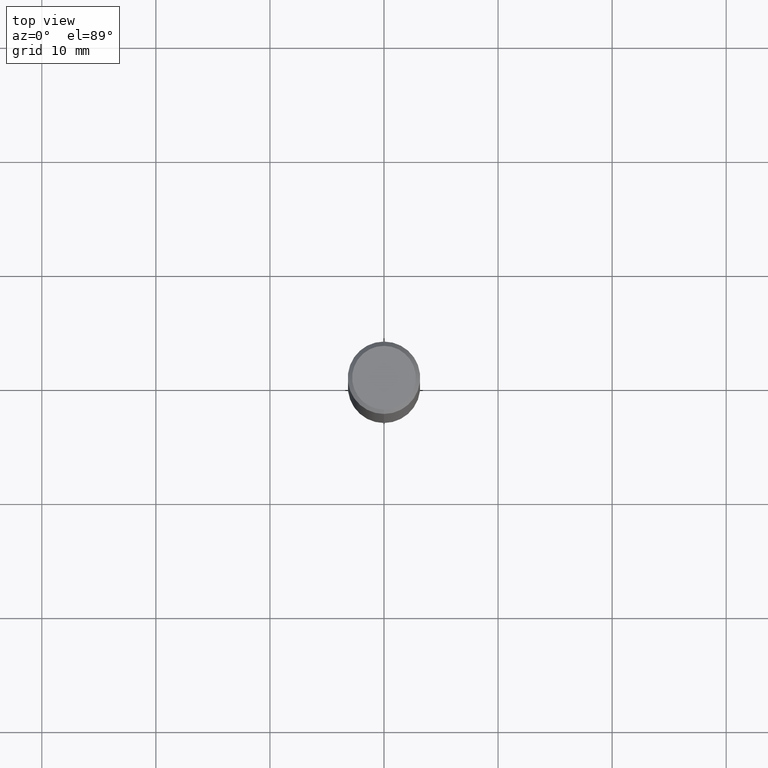
[diagram: clean part render]
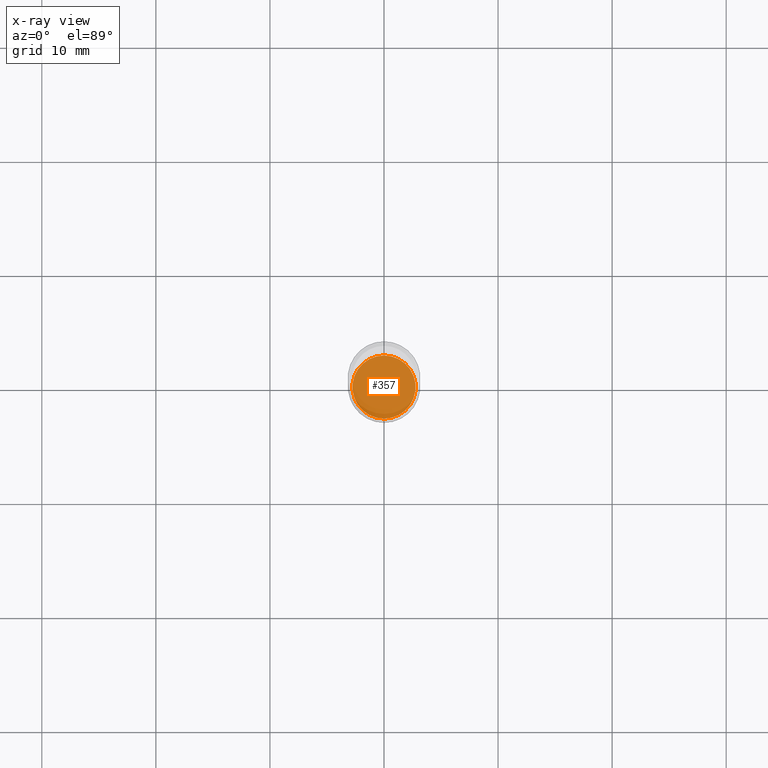
[diagram: x-ray — body ghosted, one internal face saturated and labeled with its STEP entity id]
A machine part, top view, then the same camera in x-ray: the body is ghosted and one INTERNAL B-rep face — a face not visible from any outside direction — is saturated and labeled: STEP entity #357.
In plain terms, the highlighted planar face has unit normal (-0, 0, 1).
Its self-contained STEP definition (entity closure, byte-faithful):
#8 = DIRECTION ( 'NONE',  ( -6.982962677686265133E-15, -1.000000000000000000, 2.508584016220627649E-15 ) ) ;
#15 = DIRECTION ( 'NONE',  ( -6.982962677686265133E-15, -1.000000000000000000, 2.508584016220627649E-15 ) ) ;
#68 = DIRECTION ( 'NONE',  ( -6.982962677686265922E-15, -1.000000000000000000, 3.491749109436874554E-15 ) ) ;
#78 = EDGE_LOOP ( 'NONE', ( #305, #135 ) ) ;
#81 = EDGE_CURVE ( 'NONE', #446, #328, #320, .T. ) ;
#135 = ORIENTED_EDGE ( 'NONE', *, *, #81, .F. ) ;
#148 = CARTESIAN_POINT ( 'NONE',  ( 7.755573960821947898E-16, 0.1088999999999934604, -1.875000000000000444 ) ) ;
#153 = CIRCLE ( 'NONE', #168, 0.1088999999999999968 ) ;
#163 = CARTESIAN_POINT ( 'NONE',  ( 4.584903418085470008E-29, -6.547029580194142106E-15, -1.875000000000000000 ) ) ;
#168 = AXIS2_PLACEMENT_3D ( 'NONE', #362, #492, #15 ) ;
#192 = FACE_OUTER_BOUND ( 'NONE', #78, .T. ) ;
#220 = PLANE ( 'NONE',  #322 ) ;
#247 = EDGE_CURVE ( 'NONE', #328, #446, #153, .T. ) ;
#305 = ORIENTED_EDGE ( 'NONE', *, *, #247, .F. ) ;
#320 = CIRCLE ( 'NONE', #439, 0.1088999999999999968 ) ;
#322 = AXIS2_PLACEMENT_3D ( 'NONE', #343, #377, #68 ) ;
#328 = VERTEX_POINT ( 'NONE', #440 ) ;
#343 = CARTESIAN_POINT ( 'NONE',  ( 4.584903418085470008E-29, -6.547029580194142106E-15, -1.875000000000000000 ) ) ;
#357 = ADVANCED_FACE ( 'NONE', ( #192 ), #220, .F. ) ;
#362 = CARTESIAN_POINT ( 'NONE',  ( 4.584903418085470008E-29, -6.547029580194142106E-15, -1.875000000000000000 ) ) ;
#377 = DIRECTION ( 'NONE',  ( -2.445281822978917058E-29, 3.491749109436874554E-15, 1.000000000000000000 ) ) ;
#435 = DIRECTION ( 'NONE',  ( -2.445281822978917058E-29, 3.491749109436874948E-15, 1.000000000000000000 ) ) ;
#439 = AXIS2_PLACEMENT_3D ( 'NONE', #163, #435, #8 ) ;
#440 = CARTESIAN_POINT ( 'NONE',  ( -7.604446355999884163E-16, -0.1089000000000065332, -1.874999999999999778 ) ) ;
#446 = VERTEX_POINT ( 'NONE', #148 ) ;
#492 = DIRECTION ( 'NONE',  ( -2.445281822978917058E-29, 3.491749109436874948E-15, 1.000000000000000000 ) ) ;